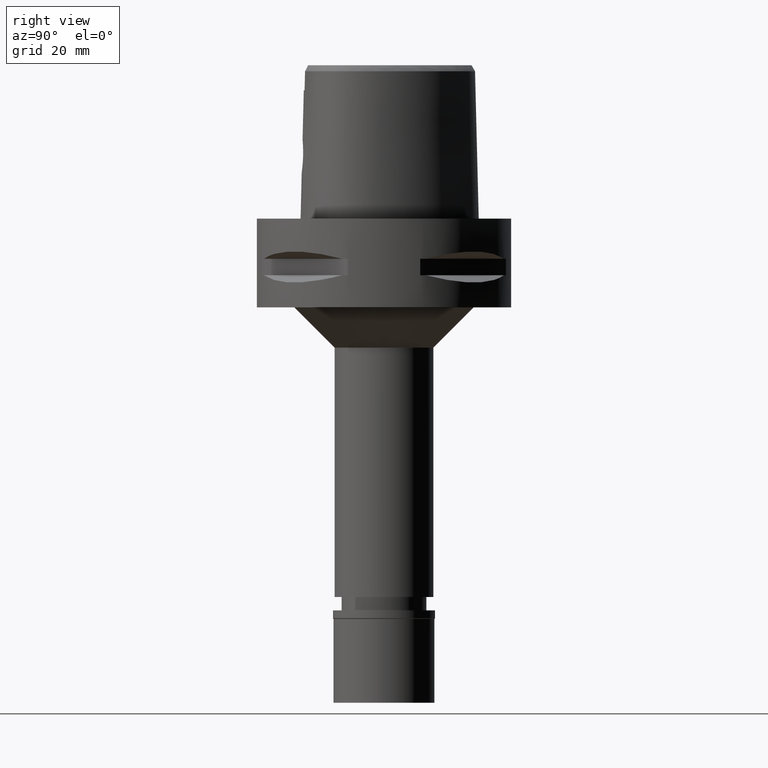
[diagram: clean part render]
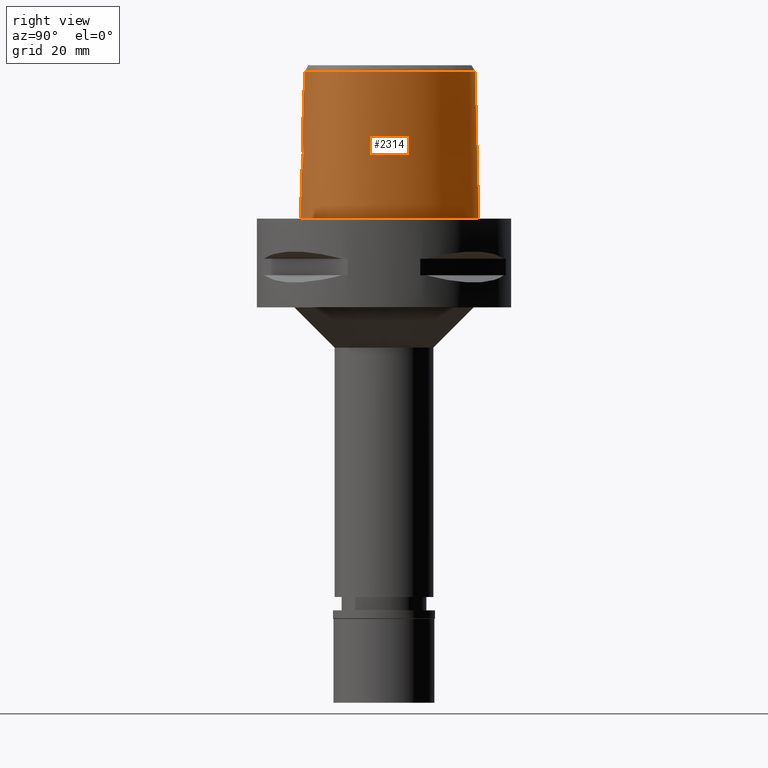
[diagram: same view with one face highlighted and labeled with its STEP entity id]
A machine part, right view. The second image highlights one B-rep face of the part: STEP entity #2314.
In plain terms, the highlighted face is a freeform B-spline surface patch.
Its self-contained STEP definition (entity closure, byte-faithful):
#7 = CARTESIAN_POINT ( 'NONE',  ( 2.953000302317444703, -20.23281254683988806, 12.72512295698802909 ) ) ;
#33 = CARTESIAN_POINT ( 'NONE',  ( 2.361140904827190745, -20.12552479265213279, 18.79118822093421315 ) ) ;
#80 = VERTEX_POINT ( 'NONE', #1094 ) ;
#90 = CARTESIAN_POINT ( 'NONE',  ( 22.24453913892937607, -4.100468749646195121, -2.407935148718504462E-06 ) ) ;
#108 = CARTESIAN_POINT ( 'NONE',  ( 0.6155340743205000020, 23.51883498295000052, -0.7304378952039000117 ) ) ;
#118 = CARTESIAN_POINT ( 'NONE',  ( 20.74942746575114683, 4.657187520524360913, -2.407935148718504462E-06 ) ) ;
#153 = B_SPLINE_CURVE_WITH_KNOTS ( 'NONE', 3,
 ( #2979, #1034, #4153, #3516, #1484, #3138, #2226, #311, #2305, #290, #4606, #3415, #1949, #1196, #4715, #1168, #1848, #3053, #1902, #1090, #3472, #3807, #5046, #4292, #7, #4991, #1457, #2753, #4207, #4233, #4318, #2249, #4661, #3023, #2640, #392, #775, #1870, #696, #4635, #2331, #4686, #3828, #3439, #1566, #3104, #750, #1114, #1511, #4258, #3078, #366, #5019, #2666, #721, #2272, #3854, #337, #3906, #1138, #2689, #3883, #1926, #3495, #5072, #1534, #2726, #4398, #1266, #1974, #1998, #3570, #1613, #33, #1593, #4029, #877, #2773, #1238, #1673, #798, #3655, #1217, #443, #2825 ),
 .UNSPECIFIED., .F., .F.,
 ( 4, 2, 2, 1, 1, 1, 2, 2, 2, 2, 2, 1, 1, 2, 2, 2, 2, 2, 2, 1, 2, 2, 2, 2, 1, 2, 2, 2, 2, 1, 1, 1, 2, 2, 2, 2, 2, 1, 1, 2, 2, 2, 2, 2, 2, 1, 2, 2, 4 ),
 ( 0.0000000000000000000, 0.06249999999998870348, 0.09374999999998308298, 0.1093749999999803352, 0.1171874999999789752, 0.1210937499999782813, 0.1230468749999778511, 0.1249999999999774347, 0.1874999999999653610, 0.2187499999999593381, 0.2343749999999563405, 0.2421874999999547029, 0.2460937499999540368, 0.2480468749999536759, 0.2499999999999532874, 0.2812499999999467648, 0.2968749999999435452, 0.3124999999999403810, 0.3437499999999334976, 0.3593749999999300559, 0.3671874999999282796, 0.3749999999999265587, 0.4374999999999132361, 0.4687499999999065192, 0.4843749999999033551, 0.4921874999999019673, 0.4999999999999006350, 0.5624999999998893108, 0.5937499999998836486, 0.6093749999998808731, 0.6171874999998794298, 0.6210937499998787636, 0.6230468749998787636, 0.6249999999998787636, 0.6874999999998906430, 0.7187499999998961941, 0.7343749999998988587, 0.7421874999999006350, 0.7460937499999014122, 0.7480468749999018563, 0.7499999999999023004, 0.7812499999999138467, 0.7968749999999197309, 0.8124999999999255040, 0.8437499999999370504, 0.8593749999999429345, 0.8671874999999458211, 0.8749999999999487077, 1.000000000000000000 ),
 .UNSPECIFIED. ) ;
#156 = CARTESIAN_POINT ( 'NONE',  ( 7.259695346965000518, 20.78233549177999961, 24.59140913852999688 ) ) ;
#189 = CARTESIAN_POINT ( 'NONE',  ( 4.868968355917000501, 21.95285521191999933, 24.59140913852999688 ) ) ;
#218 = EDGE_LOOP ( 'NONE', ( #2907, #3652, #1912, #2954, #2752, #4960, #3856, #3811 ) ) ;
#232 = CARTESIAN_POINT ( 'NONE',  ( 1.853272111740999817, -20.08023965807000266, 24.59140913852999688 ) ) ;
#257 = CARTESIAN_POINT ( 'NONE',  ( 16.38077671195999940, -14.94316433194000027, 37.25233265539999650 ) ) ;
#286 = CARTESIAN_POINT ( 'NONE',  ( 20.96392229025000020, -8.820258251841000430, 24.59140913852999688 ) ) ;
#290 = CARTESIAN_POINT ( 'NONE',  ( 1.511996643077052616, -20.34900293593731746, 11.74281483622945998 ) ) ;
#302 = CARTESIAN_POINT ( 'NONE',  ( 19.88562079789374337, 4.345879946636546975, 36.52186680739949765 ) ) ;
#308 = CARTESIAN_POINT ( 'NONE',  ( 16.57726024611999804, -15.19304449975999916, 24.59140913852999688 ) ) ;
#311 = CARTESIAN_POINT ( 'NONE',  ( 1.432005274343663315, -20.35315137661976692, 11.71134280122691607 ) ) ;
#332 = CARTESIAN_POINT ( 'NONE',  ( 21.05621876348999777, -0.4440252205588000045, 37.25233265539999650 ) ) ;
#337 = CARTESIAN_POINT ( 'NONE',  ( 3.664274183418348763, -20.05181531545110474, 17.23726368441675305 ) ) ;
#366 = CARTESIAN_POINT ( 'NONE',  ( 3.828814954406154492, -20.04436409866707436, 16.82317999466502201 ) ) ;
#379 = CARTESIAN_POINT ( 'NONE',  ( 0.0000000000000000000, -20.18628283968999781, 19.55000000000000071 ) ) ;
#392 = CARTESIAN_POINT ( 'NONE',  ( 3.714384130429927655, -20.13065104889713552, 13.88538127549325907 ) ) ;
#443 = CARTESIAN_POINT ( 'NONE',  ( 0.4948470747602100595, -20.18628283969000492, 19.54999999999999716 ) ) ;
#473 = CARTESIAN_POINT ( 'NONE',  ( 7.571159464848644660, 21.31457036461463872, -2.407935148718504462E-06 ) ) ;
#517 = CARTESIAN_POINT ( 'NONE',  ( -0.6834383969738000442, 22.83968675123999859, 24.59140913852999688 ) ) ;
#585 = EDGE_CURVE ( 'NONE', #2911, #2917, #4518, .T. ) ;
#590 = CARTESIAN_POINT ( 'NONE',  ( 2.373090250532999601, 22.37624315011999698, 37.25233265539999650 ) ) ;
#612 = CARTESIAN_POINT ( 'NONE',  ( 18.08416038786999991, 10.44089487483999967, -0.7304378952039000117 ) ) ;
#636 = CARTESIAN_POINT ( 'NONE',  ( 19.40779762269999864, -12.64961922650999959, 11.93048562166000082 ) ) ;
#665 = CARTESIAN_POINT ( 'NONE',  ( 14.68244497387000003, -17.23001773499000322, -0.7304378952039000117 ) ) ;
#687 = CARTESIAN_POINT ( 'NONE',  ( 10.15538781006737779, 18.47129526702845581, 36.52186680739949765 ) ) ;
#692 = CARTESIAN_POINT ( 'NONE',  ( 18.58171406978999940, -14.18198046921999911, -0.7304378952039000117 ) ) ;
#696 = CARTESIAN_POINT ( 'NONE',  ( 3.927790621264559245, -20.09243382075442952, 14.47756111131405099 ) ) ;
#716 = CARTESIAN_POINT ( 'NONE',  ( 21.68301093535000135, -0.3332744170417000218, 11.93048562166000082 ) ) ;
#721 = CARTESIAN_POINT ( 'NONE',  ( 3.755991642142385789, -20.04748304465440256, 17.01495889863507927 ) ) ;
#745 = CARTESIAN_POINT ( 'NONE',  ( 21.36961484941999956, -0.3886498188002999732, 24.59140913852999688 ) ) ;
#750 = CARTESIAN_POINT ( 'NONE',  ( 4.050037399383528580, -20.04599349312610457, 15.75361975468774922 ) ) ;
#775 = CARTESIAN_POINT ( 'NONE',  ( 3.727121516754793085, -20.12854809717897453, 13.91496385436844108 ) ) ;
#798 = CARTESIAN_POINT ( 'NONE',  ( 1.613182323480255587, -20.15753140428501666, 19.21500890072886847 ) ) ;
#859 = CARTESIAN_POINT ( 'NONE',  ( 4.711967477450999730E-11, 23.47499999999000053, 5.403085386508999448E-14 ) ) ;
#876 = VERTEX_POINT ( 'NONE', #3747 ) ;
#877 = CARTESIAN_POINT ( 'NONE',  ( 2.032175996666465423, -20.14130468680087560, 19.00576489869021302 ) ) ;
#887 = CARTESIAN_POINT ( 'NONE',  ( 14.40795643582930730, 15.64093753906685436, -2.407935148718504462E-06 ) ) ;
#902 = CARTESIAN_POINT ( 'NONE',  ( 17.53318563107000116, 10.12278921370999996, 24.59140913852999688 ) ) ;
#955 = CARTESIAN_POINT ( 'NONE',  ( 7.099337599002999433, 20.50831360389000224, 37.25233265539999650 ) ) ;
#1031 = CARTESIAN_POINT ( 'NONE',  ( 11.23887130437999993, -18.91049776522999792, -0.7304378952039000117 ) ) ;
#1034 = CARTESIAN_POINT ( 'NONE',  ( 0.2519697368787546798, -20.38876923348000147, 11.44999999999999751 ) ) ;
#1058 = CARTESIAN_POINT ( 'NONE',  ( 16.77374378028000024, -15.44292466757999982, 11.93048562166000082 ) ) ;
#1086 = CARTESIAN_POINT ( 'NONE',  ( 21.13154852738999878, -6.714587025978000057, 37.25233265539999650 ) ) ;
#1090 = CARTESIAN_POINT ( 'NONE',  ( 2.758179676619108012, -20.25337897196583015, 12.53390918840879742 ) ) ;
#1094 = CARTESIAN_POINT ( 'NONE',  ( 2.041042029990999821E-08, -19.88004246002000031, 31.80000004972000127 ) ) ;
#1109 = CARTESIAN_POINT ( 'NONE',  ( 17.88993631410000162, -13.52674997573999960, 37.25233265539999650 ) ) ;
#1114 = CARTESIAN_POINT ( 'NONE',  ( 4.026067555602933723, -20.04243146964289579, 16.01312629724819558 ) ) ;
#1135 = CARTESIAN_POINT ( 'NONE',  ( 20.16779717896000079, 4.447573586969999937, 24.59140913852999688 ) ) ;
#1138 = CARTESIAN_POINT ( 'NONE',  ( 3.346444325172779344, -20.07049246070073067, 17.78503332969416206 ) ) ;
#1168 = CARTESIAN_POINT ( 'NONE',  ( 2.396851615573603933, -20.28741283536911055, 12.23208293719084949 ) ) ;
#1172 = VERTEX_POINT ( 'NONE', #3536 ) ;
#1196 = CARTESIAN_POINT ( 'NONE',  ( 1.946611601990920093, -20.32311006286676758, 11.93862046598393789 ) ) ;
#1217 = CARTESIAN_POINT ( 'NONE',  ( 1.027682876504597775, -20.17741712424492917, 19.45809765211911113 ) ) ;
#1238 = CARTESIAN_POINT ( 'NONE',  ( 1.767192251251785695, -20.15197845540285826, 19.14519926632055657 ) ) ;
#1249 = CARTESIAN_POINT ( 'NONE',  ( 22.05732880305950872, -6.847636727349788011, -2.407935148718504462E-06 ) ) ;
#1266 = CARTESIAN_POINT ( 'NONE',  ( 2.871987183428478918, -20.09819914941970254, 18.35556622516749670 ) ) ;
#1274 = CARTESIAN_POINT ( 'NONE',  ( 21.55524831800265417, -8.996025407835238852, -2.407935148718504462E-06 ) ) ;
#1290 = CARTESIAN_POINT ( 'NONE',  ( 2.568271206886000080, 23.31126238921000038, -0.7304378952039000117 ) ) ;
#1299 = CARTESIAN_POINT ( 'NONE',  ( 16.95889176330869219, -15.67838871939572165, -2.407935148718504462E-06 ) ) ;
#1323 = VECTOR ( 'NONE', #1477, 1000.000000000000114 ) ;
#1360 = CARTESIAN_POINT ( 'NONE',  ( 17.80867300947000231, 10.28184204427999937, 11.93048562166000082 ) ) ;
#1377 = CARTESIAN_POINT ( 'NONE',  ( 5.105252918116000238, 22.54305024741999830, -0.7304378952039000117 ) ) ;
#1406 = CARTESIAN_POINT ( 'NONE',  ( 16.39211273426573001, -14.95758104715370074, 36.52186680739949765 ) ) ;
#1414 = CARTESIAN_POINT ( 'NONE',  ( 1.836480365832000139, -19.76356488671000022, 37.25233265539999650 ) ) ;
#1433 = CARTESIAN_POINT ( 'NONE',  ( 6.232237551637999751, -19.68961161497999868, 24.59140913852999688 ) ) ;
#1454 = CARTESIAN_POINT ( 'NONE',  ( 20.09084466968999649, -11.59945457773000221, 11.93048562166000082 ) ) ;
#1457 = CARTESIAN_POINT ( 'NONE',  ( 3.169150985200411164, -20.20760989054334900, 12.97742286930013655 ) ) ;
#1473 = CARTESIAN_POINT ( 'NONE',  ( 18.90964962507620584, -12.28759713487486671, 36.52186680739949765 ) ) ;
#1477 = DIRECTION ( 'NONE',  ( -6.261791964991820244E-13, -0.02499051295389925070, -0.9996876883618708298 ) ) ;
#1480 = CARTESIAN_POINT ( 'NONE',  ( 21.99640702129000047, -0.2778990152831999905, -0.7304378952039000117 ) ) ;
#1484 = CARTESIAN_POINT ( 'NONE',  ( 1.028701314430204405, -20.37062275902202302, 11.58049741886252804 ) ) ;
#1496 = CARTESIAN_POINT ( 'NONE',  ( 6.820728071200920836E-09, -19.98212988583420469, 27.71666688228238584 ) ) ;
#1500 = CARTESIAN_POINT ( 'NONE',  ( 21.07429999882515403, -0.4408303635841097079, 36.52186680739949765 ) ) ;
#1507 = CARTESIAN_POINT ( 'NONE',  ( 20.46725036659999830, 4.555493621401000226, 11.93048562166000082 ) ) ;
#1511 = CARTESIAN_POINT ( 'NONE',  ( 3.950323019394553103, -20.04135421479659129, 16.40274729700125178 ) ) ;
#1521 = CARTESIAN_POINT ( 'NONE',  ( 6.840708457279279107E-09, -20.08420636276227356, 23.63333344114107604 ) ) ;
#1534 = CARTESIAN_POINT ( 'NONE',  ( 2.915545606163056469, -20.09570297646320114, 18.31119129212002150 ) ) ;
#1566 = CARTESIAN_POINT ( 'NONE',  ( 4.049643110176167404, -20.05399160878485176, 15.43795828968013772 ) ) ;
#1593 = CARTESIAN_POINT ( 'NONE',  ( 2.305334229541142754, -20.12831948498809354, 18.83048013503184137 ) ) ;
#1613 = CARTESIAN_POINT ( 'NONE',  ( 2.467729343595079783, -20.12009802658495872, 18.71204267792692733 ) ) ;
#1653 = CARTESIAN_POINT ( 'NONE',  ( 0.8548392465738576806, 23.47500006020234053, -2.407935148718504462E-06 ) ) ;
#1673 = CARTESIAN_POINT ( 'NONE',  ( 1.675120599120963005, -20.15532933629874535, 19.18749499249620172 ) ) ;
#1680 = CARTESIAN_POINT ( 'NONE',  ( -8.195305841971999878E-12, -20.67499999999999716, 5.691743372911998950E-14 ) ) ;
#1692 = CARTESIAN_POINT ( 'NONE',  ( -0.6642815129121999451, 22.52377613068999906, 37.25233265539999650 ) ) ;
#1713 = EDGE_CURVE ( 'NONE', #4084, #80, #4137, .T. ) ;
#1717 = CARTESIAN_POINT ( 'NONE',  ( -0.4812391256269000217, 23.48607176824999954, -0.7304378952039000117 ) ) ;
#1727 = CARTESIAN_POINT ( 'NONE',  ( -1.023314145581000008E-12, -20.38876923348000147, 11.44999999999999929 ) ) ;
#1772 = CARTESIAN_POINT ( 'NONE',  ( 2.438150569317000027, 22.68791622982000078, 24.59140913852999688 ) ) ;
#1793 = CARTESIAN_POINT ( 'NONE',  ( 3.637738219117000238, -19.56971420299000286, 36.52185956443999970 ) ) ;
#1798 = CARTESIAN_POINT ( 'NONE',  ( 14.36818021186999950, -16.67825708852999966, 24.59140913852999688 ) ) ;
#1818 = CARTESIAN_POINT ( 'NONE',  ( 20.09619608768462129, -10.23243839429637347, 36.52186680739949765 ) ) ;
#1823 = CARTESIAN_POINT ( 'NONE',  ( -0.6657939487744000129, -19.73734192329999715, 37.25233265539999650 ) ) ;
#1832 = CARTESIAN_POINT ( 'NONE',  ( 3.671249151389730514, -19.60525176641679579, 34.94790639287000289 ) ) ;
#1845 = CARTESIAN_POINT ( 'NONE',  ( 21.76083704011000108, -6.805026032829000648, 11.93048562166000082 ) ) ;
#1848 = CARTESIAN_POINT ( 'NONE',  ( 2.570081009078116097, -20.27170108689828965, 12.36908902938852783 ) ) ;
#1866 = CARTESIAN_POINT ( 'NONE',  ( 22.07548129646999868, -6.850245536254999656, -0.7304378952039000117 ) ) ;
#1870 = CARTESIAN_POINT ( 'NONE',  ( 3.850246712485327460, -20.10780614033383884, 14.21172176748871685 ) ) ;
#1891 = CARTESIAN_POINT ( 'NONE',  ( 7.108589361577225318, 20.52412316394632086, 36.52186680739949765 ) ) ;
#1897 = CARTESIAN_POINT ( 'NONE',  ( 11.02138175146999899, -18.31230440364000245, 24.59140913852999688 ) ) ;
#1902 = CARTESIAN_POINT ( 'NONE',  ( 2.714817435285946434, -20.25772213911196218, 12.49437854279837801 ) ) ;
#1912 = ORIENTED_EDGE ( 'NONE', *, *, #2811, .F. ) ;
#1926 = CARTESIAN_POINT ( 'NONE',  ( 3.080229322179500073, -20.08617626112513932, 18.13071590546872613 ) ) ;
#1949 = CARTESIAN_POINT ( 'NONE',  ( 1.734379789051307297, -20.33697246834270089, 11.83436638252411655 ) ) ;
#1974 = CARTESIAN_POINT ( 'NONE',  ( 2.772326413961004654, -20.10389738242811575, 18.45539022241096205 ) ) ;
#1998 = CARTESIAN_POINT ( 'NONE',  ( 2.673904828757553975, -20.10928166633813063, 18.54472627324817324 ) ) ;
#2008 = EDGE_CURVE ( 'NONE', #4743, #2911, #4987, .T. ) ;
#2030 = CARTESIAN_POINT ( 'NONE',  ( 5.098437039752416133, 22.52602544675025698, -2.407935148718504462E-06 ) ) ;
#2096 = CARTESIAN_POINT ( 'NONE',  ( -0.4431573284472000163, 22.53713843793000038, 37.25233265539999650 ) ) ;
#2188 = CARTESIAN_POINT ( 'NONE',  ( 14.22011350746006642, -16.41829354688282194, 36.52186680739949765 ) ) ;
#2193 = CARTESIAN_POINT ( 'NONE',  ( 14.21104783087000101, -16.40237676530000144, 37.25233265539999650 ) ) ;
#2223 = CARTESIAN_POINT ( 'NONE',  ( 20.07948470671000152, -10.22500054373999845, 37.25233265539999650 ) ) ;
#2226 = CARTESIAN_POINT ( 'NONE',  ( 1.319600680389719560, -20.35863312411227710, 11.66994494017168904 ) ) ;
#2240 = CARTESIAN_POINT ( 'NONE',  ( 2.376843874103562904, 22.39422497744536500, 36.52186680739949765 ) ) ;
#2244 = CARTESIAN_POINT ( 'NONE',  ( -1.023314145581000008E-12, -20.38876923348000147, 11.44999999999999929 ) ) ;
#2246 = CARTESIAN_POINT ( 'NONE',  ( 10.91263697501999985, -18.01320772285000160, 37.25233265539999650 ) ) ;
#2249 = CARTESIAN_POINT ( 'NONE',  ( 3.504989208053717942, -20.16277707627709859, 13.46647361461484138 ) ) ;
#2268 = CARTESIAN_POINT ( 'NONE',  ( -0.4439347078599999996, -19.74161804921999774, 37.25233265539999650 ) ) ;
#2272 = CARTESIAN_POINT ( 'NONE',  ( 3.749536200693853960, -20.04778253193095239, 17.03086640830719745 ) ) ;
#2305 = CARTESIAN_POINT ( 'NONE',  ( 1.488028627205272292, -20.35026873354180665, 11.73319909950341788 ) ) ;
#2314 = ADVANCED_FACE ( 'NONE', ( #3617 ), #4048, .T. ) ;
#2331 = CARTESIAN_POINT ( 'NONE',  ( 4.020738798783058066, -20.06858537623217131, 14.99755720130812442 ) ) ;
#2414 = CARTESIAN_POINT ( 'NONE',  ( 21.97832653747405729, -0.2810937394683906132, -2.407935148718504462E-06 ) ) ;
#2438 = CARTESIAN_POINT ( 'NONE',  ( 18.56841069526690546, -14.16937992434574944, -2.407935148718504462E-06 ) ) ;
#2455 = CARTESIAN_POINT ( 'NONE',  ( 10.55288400349000000, 18.94467580937000406, 11.93048562166000082 ) ) ;
#2504 = CARTESIAN_POINT ( 'NONE',  ( 4.987110637017000414, 22.24795272967000059, 11.93048562166000082 ) ) ;
#2509 = EDGE_CURVE ( 'NONE', #2620, #1172, #4287, .T. ) ;
#2527 = CARTESIAN_POINT ( 'NONE',  ( 13.93560852531999927, 15.24203779724999919, 24.59140913852999688 ) ) ;
#2558 = CARTESIAN_POINT ( 'NONE',  ( 14.42198652415999938, 15.65278600602999859, -0.7304378952039000117 ) ) ;
#2570 = CARTESIAN_POINT ( 'NONE',  ( 3.736696120837999402, -19.67778323291999953, 31.80000004972999861 ) ) ;
#2584 = CARTESIAN_POINT ( 'NONE',  ( 11.13012652793000079, -18.61140108444000063, 11.93048562166000082 ) ) ;
#2605 = CARTESIAN_POINT ( 'NONE',  ( -0.6840631437255000336, -20.68668116929999812, -0.7304378952039000117 ) ) ;
#2620 = VERTEX_POINT ( 'NONE', #3843 ) ;
#2637 = CARTESIAN_POINT ( 'NONE',  ( 22.26285557078999844, -4.100361500017000616, -0.7304378952039000117 ) ) ;
#2640 = CARTESIAN_POINT ( 'NONE',  ( 3.686910441482201151, -20.13511169299745163, 13.82359477142100701 ) ) ;
#2642 = EDGE_CURVE ( 'NONE', #2620, #2917, #5059, .T. ) ;
#2662 = CARTESIAN_POINT ( 'NONE',  ( 19.54161150947000181, -11.28235466362000139, 37.25233265539999650 ) ) ;
#2666 = CARTESIAN_POINT ( 'NONE',  ( 3.765593220699523958, -20.04704214534188722, 16.99108095766886706 ) ) ;
#2684 = CARTESIAN_POINT ( 'NONE',  ( 20.36913755900999945, -10.35391835322000098, 24.59140913852999688 ) ) ;
#2689 = CARTESIAN_POINT ( 'NONE',  ( 3.265869583385796915, -20.07528142228585466, 17.89964299956977811 ) ) ;
#2726 = CARTESIAN_POINT ( 'NONE',  ( 2.894506219204641795, -20.09690955887034036, 18.33274339089242133 ) ) ;
#2752 = ORIENTED_EDGE ( 'NONE', *, *, #4404, .T. ) ;
#2753 = CARTESIAN_POINT ( 'NONE',  ( 3.210108431846574906, -20.20255916619524328, 13.02975361489742490 ) ) ;
#2773 = CARTESIAN_POINT ( 'NONE',  ( 1.856701250897947908, -20.14848423775750774, 19.09993988373319240 ) ) ;
#2788 = DIRECTION ( 'NONE',  ( 1.756135622730959495E-12, 0.02499051290962944413, -0.9996876883629776112 ) ) ;
#2811 = EDGE_CURVE ( 'NONE', #4084, #1172, #3735, .T. ) ;
#2812 = CARTESIAN_POINT ( 'NONE',  ( 2.564517739329738255, 23.29328130927307683, -2.407935148718504462E-06 ) ) ;
#2815 = CARTESIAN_POINT ( 'NONE',  ( -1.703771363366000039E-11, 22.56201468012000078, 36.52186680743999858 ) ) ;
#2825 = CARTESIAN_POINT ( 'NONE',  ( 0.0000000000000000000, -20.18628283968999781, 19.55000000000000071 ) ) ;
#2831 = CARTESIAN_POINT ( 'NONE',  ( 2.113823676645627092, -20.67500006019414016, -2.407935148718504462E-06 ) ) ;
#2846 = CARTESIAN_POINT ( 'NONE',  ( 2.503210888102000098, 22.99958930952000102, 11.93048562166000082 ) ) ;
#2875 = CARTESIAN_POINT ( 'NONE',  ( 0.5990981970558999503, 23.20165460148000136, 11.93048562166000082 ) ) ;
#2907 = ORIENTED_EDGE ( 'NONE', *, *, #2642, .F. ) ;
#2911 = VERTEX_POINT ( 'NONE', #4159 ) ;
#2917 = VERTEX_POINT ( 'NONE', #4920 ) ;
#2921 = CARTESIAN_POINT ( 'NONE',  ( -0.4685451932336999747, 23.16976065814999686, 11.93048562166000082 ) ) ;
#2942 = CARTESIAN_POINT ( 'NONE',  ( 0.5662264425265000067, 22.56729383853999948, 37.25233265539999650 ) ) ;
#2954 = ORIENTED_EDGE ( 'NONE', *, *, #1713, .T. ) ;
#2973 = CARTESIAN_POINT ( 'NONE',  ( 19.55745538000580908, -11.29150212657345698, 36.52186680739949765 ) ) ;
#2977 = CARTESIAN_POINT ( 'NONE',  ( -0.6779734120752000104, -20.37023475395999839, 11.93048562166000082 ) ) ;
#2979 = CARTESIAN_POINT ( 'NONE',  ( -1.023314145581000008E-12, -20.38876923348000147, 11.44999999999999929 ) ) ;
#2996 = CARTESIAN_POINT ( 'NONE',  ( 6.175998538628999945, -19.37631759497000061, 37.25233265539999650 ) ) ;
#3020 = CARTESIAN_POINT ( 'NONE',  ( 20.94844326360000153, -10.61175397217999894, -0.7304378952039000117 ) ) ;
#3023 = CARTESIAN_POINT ( 'NONE',  ( 3.644654988411416774, -20.14185568965835671, 13.73169098936010002 ) ) ;
#3043 = CARTESIAN_POINT ( 'NONE',  ( 17.27359236349123961, 9.972912859139423603, 36.52186680739949765 ) ) ;
#3049 = CARTESIAN_POINT ( 'NONE',  ( 19.15132509477000156, -12.46323140311000088, 24.59140913852999688 ) ) ;
#3053 = CARTESIAN_POINT ( 'NONE',  ( 2.628027080897853196, -20.26624238139286049, 12.41747670474968501 ) ) ;
#3073 = CARTESIAN_POINT ( 'NONE',  ( 18.35112148456000014, -13.96357030473000016, 11.93048562166000082 ) ) ;
#3078 = CARTESIAN_POINT ( 'NONE',  ( 3.860403433732508383, -20.04330035601035220, 16.72651338066180671 ) ) ;
#3104 = CARTESIAN_POINT ( 'NONE',  ( 4.049995275655165372, -20.05320010482861193, 15.46762644421465005 ) ) ;
#3138 = CARTESIAN_POINT ( 'NONE',  ( 1.222756221966654122, -20.36284569854002768, 11.63840396453678139 ) ) ;
#3216 = CARTESIAN_POINT ( 'NONE',  ( 11.23259758795887819, -18.89324224437621780, -2.407935148718504462E-06 ) ) ;
#3231 = CARTESIAN_POINT ( 'NONE',  ( 13.69241952589000100, 15.03666369286000126, 37.25233265539999650 ) ) ;
#3241 = CARTESIAN_POINT ( 'NONE',  ( 19.64947370741161237, -12.82525394170072985, -2.407935148718504462E-06 ) ) ;
#3280 = CARTESIAN_POINT ( 'NONE',  ( 10.75753574163999993, 19.18839676167000263, -0.7304378952039000117 ) ) ;
#3310 = CARTESIAN_POINT ( 'NONE',  ( -0.7217521650970000202, 23.47150799234000118, -0.7304378952039000117 ) ) ;
#3357 = CARTESIAN_POINT ( 'NONE',  ( 18.12052889933000088, -13.74516014024000121, 24.59140913852999688 ) ) ;
#3380 = CARTESIAN_POINT ( 'NONE',  ( 20.67704204634209475, -8.734985285293141999, 36.52186680739949765 ) ) ;
#3386 = CARTESIAN_POINT ( 'NONE',  ( 19.66427015062999928, -12.83600704991000008, -0.7304378952039000117 ) ) ;
#3398 = CARTESIAN_POINT ( 'NONE',  ( 3.704239288984441103, -19.64128042389065598, 33.37395322129999897 ) ) ;
#3406 = CARTESIAN_POINT ( 'NONE',  ( 17.90324024158113758, -13.53935104435957726, 36.52186680739949765 ) ) ;
#3412 = CARTESIAN_POINT ( 'NONE',  ( -0.6718836804247999561, -20.05378833862999954, 24.59140913852999688 ) ) ;
#3415 = CARTESIAN_POINT ( 'NONE',  ( 1.537967824490054758, -20.34761404973958676, 11.75337532982764444 ) ) ;
#3436 = CARTESIAN_POINT ( 'NONE',  ( 21.62788383974000084, -4.104079499420000054, 24.59140913852999688 ) ) ;
#3439 = CARTESIAN_POINT ( 'NONE',  ( 4.048221369816547899, -20.05572751809631526, 15.37605551816500871 ) ) ;
#3467 = CARTESIAN_POINT ( 'NONE',  ( 21.94536970526000275, -4.102220499717999402, 11.93048562166000082 ) ) ;
#3472 = CARTESIAN_POINT ( 'NONE',  ( 2.808608589969381342, -20.24816661311873034, 12.58196638594042227 ) ) ;
#3495 = CARTESIAN_POINT ( 'NONE',  ( 3.003234361615560566, -20.09064592609334099, 18.21745801850492086 ) ) ;
#3516 = CARTESIAN_POINT ( 'NONE',  ( 0.8988479711751922174, -20.37494334817867880, 11.54879813003841171 ) ) ;
#3536 = CARTESIAN_POINT ( 'NONE',  ( 3.637738219117000238, -19.56971420299000286, 36.52185956443999970 ) ) ;
#3570 = CARTESIAN_POINT ( 'NONE',  ( 2.520050460813455295, -20.11738995382102146, 18.67115940201987101 ) ) ;
#3617 = FACE_OUTER_BOUND ( 'NONE', #218, .T. ) ;
#3652 = ORIENTED_EDGE ( 'NONE', *, *, #2509, .T. ) ;
#3653 = CARTESIAN_POINT ( 'NONE',  ( 2.503154195451533948, -19.81241979350809146, 31.80000012137772814 ) ) ;
#3655 = CARTESIAN_POINT ( 'NONE',  ( 1.583085234474576941, -20.15857747892416185, 19.22794739783265072 ) ) ;
#3676 = CARTESIAN_POINT ( 'NONE',  ( 3.736696120837999402, -19.67778323291999953, 31.80000004972999861 ) ) ;
#3700 = CARTESIAN_POINT ( 'NONE',  ( 4.750826074818000677, 21.65775769417000163, 37.25233265539999650 ) ) ;
#3727 = CARTESIAN_POINT ( 'NONE',  ( 0.5826623197911999785, 22.88447422001000220, 24.59140913852999688 ) ) ;
#3732 = B_SPLINE_CURVE_WITH_KNOTS ( 'NONE', 3,
 ( #4725, #1496, #1521, #379 ),
 .UNSPECIFIED., .F., .F.,
 ( 4, 4 ),
 ( 0.0000000000000000000, 1.000000000000000000 ),
 .UNSPECIFIED. ) ;
#3735 = B_SPLINE_CURVE_WITH_KNOTS ( 'NONE', 3,
 ( #2570, #3398, #1832, #4582 ),
 .UNSPECIFIED., .F., .F.,
 ( 4, 4 ),
 ( 0.0000000000000000000, 1.000000000000000000 ),
 .UNSPECIFIED. ) ;
#3746 = CARTESIAN_POINT ( 'NONE',  ( 21.32871516739763962, -4.105831245033947141, 36.52186680739949765 ) ) ;
#3747 = CARTESIAN_POINT ( 'NONE',  ( 0.0000000000000000000, -20.18628283968999781, 19.55000000000000071 ) ) ;
#3748 = CARTESIAN_POINT ( 'NONE',  ( 2.041042029990999821E-08, -19.88004246002000031, 31.80000004972000127 ) ) ;
#3749 = CARTESIAN_POINT ( 'NONE',  ( -0.4520500659791000242, -20.37458439079999906, 11.93048562166000082 ) ) ;
#3768 = CARTESIAN_POINT ( 'NONE',  ( 4.467522181836223183, -19.48130276147387008, 36.52186680739949765 ) ) ;
#3776 = CARTESIAN_POINT ( 'NONE',  ( 20.36546124981000006, -11.75800453477999952, -0.7304378952039000117 ) ) ;
#3803 = CARTESIAN_POINT ( 'NONE',  ( 21.57281239781999815, -9.001246196726999216, -0.7304378952039000117 ) ) ;
#3807 = CARTESIAN_POINT ( 'NONE',  ( 2.830175095658061135, -20.24590160278927442, 12.60298252333453561 ) ) ;
#3811 = ORIENTED_EDGE ( 'NONE', *, *, #585, .T. ) ;
#3819 = CARTESIAN_POINT ( 'NONE',  ( 0.7901461619516162438, 22.56201467849918529, 36.52186680739949765 ) ) ;
#3825 = CARTESIAN_POINT ( 'NONE',  ( 21.26836734403000051, -8.910752224283999823, 11.93048562166000082 ) ) ;
#3828 = CARTESIAN_POINT ( 'NONE',  ( 4.045013207763221708, -20.05847505278510567, 15.28275217474474879 ) ) ;
#3843 = CARTESIAN_POINT ( 'NONE',  ( -1.703771363366000039E-11, 22.56201468012000078, 36.52186680743999858 ) ) ;
#3851 = CARTESIAN_POINT ( 'NONE',  ( -0.4561077450385999654, -20.69106756158999971, -0.7304378952039000117 ) ) ;
#3854 = CARTESIAN_POINT ( 'NONE',  ( 3.745459306425696244, -20.04797394566475077, 17.04080371184678810 ) ) ;
#3856 = ORIENTED_EDGE ( 'NONE', *, *, #2008, .T. ) ;
#3883 = CARTESIAN_POINT ( 'NONE',  ( 3.128678969656458531, -20.08334280844291087, 18.07279819847896718 ) ) ;
#3906 = CARTESIAN_POINT ( 'NONE',  ( 3.559803832323797046, -20.05788146350400325, 17.44950363748057498 ) ) ;
#3983 = CARTESIAN_POINT ( 'NONE',  ( 18.06826693766394598, 10.43171878024966759, -2.407935148718504462E-06 ) ) ;
#4006 = CARTESIAN_POINT ( 'NONE',  ( 20.34961803780064926, -11.74885745202729836, -2.407935148718504462E-06 ) ) ;
#4023 = CARTESIAN_POINT ( 'NONE',  ( 10.14358052719000014, 18.45723390477000336, 37.25233265539999650 ) ) ;
#4029 = CARTESIAN_POINT ( 'NONE',  ( 2.144427845708293479, -20.13626349860851761, 18.93810770242787811 ) ) ;
#4048 = B_SPLINE_SURFACE_WITH_KNOTS ( 'NONE', 3, 3, ( 
 ( #2605, #2977, #3412, #1823 ),
 ( #3851, #3749, #4176, #2268 ),
 ( #4938, #4964, #232, #1414 ),
 ( #4203, #4547, #1433, #2996 ),
 ( #1031, #2584, #1897, #2246 ),
 ( #665, #4631, #1798, #2193 ),
 ( #4151, #1058, #308, #257 ),
 ( #692, #3073, #3357, #1109 ),
 ( #3386, #636, #3049, #4988 ),
 ( #3776, #1454, #4572, #2662 ),
 ( #3020, #4657, #2684, #2223 ),
 ( #3803, #3825, #286, #4229 ),
 ( #1866, #1845, #4600, #1086 ),
 ( #2637, #3467, #3436, #5015 ),
 ( #1480, #716, #745, #332 ),
 ( #5043, #1507, #1135, #4255 ),
 ( #612, #1360, #902, #4809 ),
 ( #2558, #4511, #2527, #3231 ),
 ( #3280, #2455, #4863, #4023 ),
 ( #4905, #4885, #156, #955 ),
 ( #1377, #2504, #189, #3700 ),
 ( #1290, #2846, #1772, #590 ),
 ( #108, #2875, #3727, #2942 ),
 ( #1717, #2921, #4074, #2096 ),
 ( #3310, #4418, #517, #1692 ) ),
 .UNSPECIFIED., .F., .F., .F.,
 ( 4, 1, 1, 1, 1, 1, 1, 1, 1, 1, 1, 1, 1, 1, 1, 1, 1, 1, 1, 1, 1, 1, 4 ),
 ( 4, 4 ),
 ( -0.008985960173572999157, 0.0000000000000000000, 0.08333333333340001148, 0.1666666666667000196, 0.2083333333333000081, 0.2500000000000000000, 0.2916666666666999919, 0.3125000000000000000, 0.3333333333333000081, 0.3541666666666000163, 0.3749999999998999689, 0.4166666666666000163, 0.4583333333332000326, 0.4999999999998999689, 0.5833333333331000015, 0.6666666666664999852, 0.7499999999998000488, 0.8333333333329999704, 0.8749999999997000177, 0.9166666666664000651, 0.9583333333329999704, 1.000000000000000000, 1.011710456763000199 ),
 ( -4.473401541554999995E-09, 1.000000228143999914 ),
 .UNSPECIFIED. ) ;
#4074 = CARTESIAN_POINT ( 'NONE',  ( -0.4558512608404000077, 22.85344954804000039, 24.59140913852999688 ) ) ;
#4076 = CARTESIAN_POINT ( 'NONE',  ( 1.251533272181974299, -19.88005341395374970, 31.80000012137772814 ) ) ;
#4084 = VERTEX_POINT ( 'NONE', #4574 ) ;
#4137 = B_SPLINE_CURVE_WITH_KNOTS ( 'NONE', 3,
 ( #3676, #3653, #4076, #3748 ),
 .UNSPECIFIED., .F., .F.,
 ( 4, 4 ),
 ( 0.0000000000000000000, 1.000000000000000000 ),
 .UNSPECIFIED. ) ;
#4151 = CARTESIAN_POINT ( 'NONE',  ( 16.97022731444999977, -15.69280483540000048, -0.7304378952039000117 ) ) ;
#4153 = CARTESIAN_POINT ( 'NONE',  ( 0.5100579658805998173, -20.38531276215466903, 11.47358267918777663 ) ) ;
#4159 = CARTESIAN_POINT ( 'NONE',  ( -8.195305841971999878E-12, -20.67499999999999716, 5.691743372911998950E-14 ) ) ;
#4169 = CARTESIAN_POINT ( 'NONE',  ( 4.757642236485253306, 21.67478320247979440, 36.52186680739949765 ) ) ;
#4176 = CARTESIAN_POINT ( 'NONE',  ( -0.4479923869194999964, -20.05810122000999840, 24.59140913852999688 ) ) ;
#4199 = CARTESIAN_POINT ( 'NONE',  ( -1.703771363366000039E-11, 22.56201468012000078, 36.52186680743999858 ) ) ;
#4203 = CARTESIAN_POINT ( 'NONE',  ( 6.344715577655000160, -20.31619965499999836, -0.7304378952039000117 ) ) ;
#4207 = CARTESIAN_POINT ( 'NONE',  ( 3.289399613302775194, -20.19244639184481116, 13.13636645578711537 ) ) ;
#4229 = CARTESIAN_POINT ( 'NONE',  ( 20.65947723647000345, -8.729764279398001037, 37.25233265539999650 ) ) ;
#4233 = CARTESIAN_POINT ( 'NONE',  ( 3.328551379878741834, -20.18727222454431924, 13.19186960104624440 ) ) ;
#4248 = CARTESIAN_POINT ( 'NONE',  ( 13.70645019738534387, 15.04851265230760227, 36.52186680739949765 ) ) ;
#4255 = CARTESIAN_POINT ( 'NONE',  ( 19.86834399131999973, 4.339653552538000447, 37.25233265539999650 ) ) ;
#4258 = CARTESIAN_POINT ( 'NONE',  ( 3.918456791367075809, -20.04170609324424035, 16.53266420033526884 ) ) ;
#4287 = B_SPLINE_CURVE_WITH_KNOTS ( 'NONE', 3,
 ( #4199, #3819, #2240, #4169, #1891, #687, #4248, #3043, #302, #1500, #3746, #4624, #3380, #1818, #2973, #1473, #3406, #1406, #2188, #4982, #4958, #3768, #1793 ),
 .UNSPECIFIED., .F., .F.,
 ( 4, 1, 1, 1, 1, 1, 1, 1, 1, 1, 1, 1, 1, 1, 1, 1, 1, 1, 1, 1, 4 ),
 ( 0.0000000000000000000, 0.04382683003322147830, 0.08765366006602208493, 0.1314804900989280378, 0.1753073201318339769, 0.2629609801974353012, 0.3506146402631419856, 0.4382683003289537527, 0.5259219603945551880, 0.5697487904274610715, 0.6135756204602618169, 0.6574024504931677004, 0.6793158655095680176, 0.7012292805259684458, 0.7231426955423687630, 0.7450561105587690802, 0.7888829405916749637, 0.8327097706245809583, 0.8765366006573815927, 0.9641902607230882216, 1.000000000000000000 ),
 .UNSPECIFIED. ) ;
#4292 = CARTESIAN_POINT ( 'NONE',  ( 2.853007646184912094, -20.24348516854156443, 12.62547111175370418 ) ) ;
#4318 = CARTESIAN_POINT ( 'NONE',  ( 3.437023659240730833, -20.17240543795050556, 13.35378256598082736 ) ) ;
#4383 = CARTESIAN_POINT ( 'NONE',  ( 10.74572894951485758, 19.17433598385124327, -2.407935148718504462E-06 ) ) ;
#4398 = CARTESIAN_POINT ( 'NONE',  ( 2.880386059684364231, -20.09771851976561408, 18.34709984349601442 ) ) ;
#4404 = EDGE_CURVE ( 'NONE', #80, #876, #3732, .T. ) ;
#4406 = CARTESIAN_POINT ( 'NONE',  ( 20.93173257720918201, -10.60431643076686825, -2.407935148718504462E-06 ) ) ;
#4418 = CARTESIAN_POINT ( 'NONE',  ( -0.7025952810354000322, 23.15559737179000166, 11.93048562166000082 ) ) ;
#4511 = CARTESIAN_POINT ( 'NONE',  ( 14.17879752474000021, 15.44741190164000066, 11.93048562166000082 ) ) ;
#4518 = B_SPLINE_CURVE_WITH_KNOTS ( 'NONE', 3,
 ( #1680, #2831, #4768, #3216, #4796, #1299, #2438, #3241, #4006, #4406, #1274, #1249, #90, #2414, #118, #3983, #887, #4383, #473, #2030, #2812, #1653, #859 ),
 .UNSPECIFIED., .F., .F.,
 ( 4, 1, 1, 1, 1, 1, 1, 1, 1, 1, 1, 1, 1, 1, 1, 1, 1, 1, 1, 1, 4 ),
 ( 0.0000000000000000000, 0.08333333333340001148, 0.1666666666667000196, 0.2083333333333000081, 0.2500000000000000000, 0.2916666666666999919, 0.3125000000000000000, 0.3333333333333000081, 0.3541666666666000163, 0.3749999999998999689, 0.4166666666666000163, 0.4583333333332000326, 0.4999999999998999689, 0.5833333333331000015, 0.6666666666664999852, 0.7499999999998000488, 0.8333333333329999704, 0.8749999999997000177, 0.9166666666664000651, 0.9583333333329999704, 1.000000000000000000 ),
 .UNSPECIFIED. ) ;
#4547 = CARTESIAN_POINT ( 'NONE',  ( 6.288476564645999467, -20.00290563499000385, 11.93048562166000082 ) ) ;
#4572 = CARTESIAN_POINT ( 'NONE',  ( 19.81622808958000093, -11.44090462067000047, 24.59140913852999688 ) ) ;
#4574 = CARTESIAN_POINT ( 'NONE',  ( 3.736696120837999402, -19.67778323291999953, 31.80000004972999861 ) ) ;
#4582 = CARTESIAN_POINT ( 'NONE',  ( 3.637738219117000238, -19.56971420299000286, 36.52185956443999970 ) ) ;
#4600 = CARTESIAN_POINT ( 'NONE',  ( 21.44619278375000349, -6.759806529403999953, 24.59140913852999688 ) ) ;
#4606 = CARTESIAN_POINT ( 'NONE',  ( 1.527965580143959556, -20.34815231994709706, 11.74928068373157686 ) ) ;
#4624 = CARTESIAN_POINT ( 'NONE',  ( 21.14970177531336049, -6.717195943318999163, 36.52186680739949765 ) ) ;
#4631 = CARTESIAN_POINT ( 'NONE',  ( 14.52531259286999976, -16.95413741175999789, 11.93048562166000082 ) ) ;
#4635 = CARTESIAN_POINT ( 'NONE',  ( 4.002664568940697443, -20.07397280447635524, 14.86850854325290605 ) ) ;
#4657 = CARTESIAN_POINT ( 'NONE',  ( 20.65879041129999649, -10.48283616269999996, 11.93048562166000082 ) ) ;
#4661 = CARTESIAN_POINT ( 'NONE',  ( 3.599362307144390982, -20.14875877785065583, 13.64217581319817185 ) ) ;
#4686 = CARTESIAN_POINT ( 'NONE',  ( 4.038482247990498486, -20.06165359963865313, 15.18817721993927883 ) ) ;
#4715 = CARTESIAN_POINT ( 'NONE',  ( 2.282207029739617976, -20.29700151028900379, 12.15162930636621219 ) ) ;
#4725 = CARTESIAN_POINT ( 'NONE',  ( 2.041042029990999821E-08, -19.88004246002000031, 31.80000004972000127 ) ) ;
#4743 = VERTEX_POINT ( 'NONE', #1727 ) ;
#4768 = CARTESIAN_POINT ( 'NONE',  ( 6.341471029907989276, -20.29812505958370039, -2.407935148718504885E-06 ) ) ;
#4796 = CARTESIAN_POINT ( 'NONE',  ( 14.67337967408136024, -17.21410161496463687, -2.407935148718504462E-06 ) ) ;
#4809 = CARTESIAN_POINT ( 'NONE',  ( 17.25769825266999646, 9.963736383142000719, 37.25233265539999650 ) ) ;
#4825 = EDGE_CURVE ( 'NONE', #4743, #876, #153, .T. ) ;
#4863 = CARTESIAN_POINT ( 'NONE',  ( 10.34823226533999829, 18.70095485707000194, 24.59140913852999688 ) ) ;
#4868 = VECTOR ( 'NONE', #2788, 999.9999999999998863 ) ;
#4885 = CARTESIAN_POINT ( 'NONE',  ( 7.420053094925999737, 21.05635737968000143, 11.93048562166000082 ) ) ;
#4905 = CARTESIAN_POINT ( 'NONE',  ( 7.580410842886999845, 21.33037926757000236, -0.7304378952039000117 ) ) ;
#4920 = CARTESIAN_POINT ( 'NONE',  ( 4.711967477450999730E-11, 23.47499999999000053, 5.403085386508999448E-14 ) ) ;
#4938 = CARTESIAN_POINT ( 'NONE',  ( 1.886855603557999972, -20.71358920079000043, -0.7304378952039000117 ) ) ;
#4958 = CARTESIAN_POINT ( 'NONE',  ( 7.300578979382821743, -19.07170738130709964, 36.52186680739949765 ) ) ;
#4960 = ORIENTED_EDGE ( 'NONE', *, *, #4825, .F. ) ;
#4964 = CARTESIAN_POINT ( 'NONE',  ( 1.870063857648999850, -20.39691442942999799, 11.93048562166000082 ) ) ;
#4982 = CARTESIAN_POINT ( 'NONE',  ( 10.91891095220969632, -18.03046396093377268, 36.52186680739949765 ) ) ;
#4987 = LINE ( 'NONE', #2244, #1323 ) ;
#4988 = CARTESIAN_POINT ( 'NONE',  ( 18.89485256684000092, -12.27684357971000040, 37.25233265539999650 ) ) ;
#4991 = CARTESIAN_POINT ( 'NONE',  ( 3.042491796684531735, -20.22274507510634578, 12.82354767342773627 ) ) ;
#5015 = CARTESIAN_POINT ( 'NONE',  ( 21.31039797420999804, -4.105938499120999730, 37.25233265539999650 ) ) ;
#5019 = CARTESIAN_POINT ( 'NONE',  ( 3.787426346249940678, -20.04607170149546036, 16.93525315950588350 ) ) ;
#5043 = CARTESIAN_POINT ( 'NONE',  ( 20.76670355424000292, 4.663413655831999627, -0.7304378952039000117 ) ) ;
#5046 = CARTESIAN_POINT ( 'NONE',  ( 2.844541275131355462, -20.24438467540249320, 12.61708719065901541 ) ) ;
#5059 = LINE ( 'NONE', #2815, #4868 ) ;
#5072 = CARTESIAN_POINT ( 'NONE',  ( 2.963657114686569560, -20.09293563006364280, 18.26079471621887862 ) ) ;